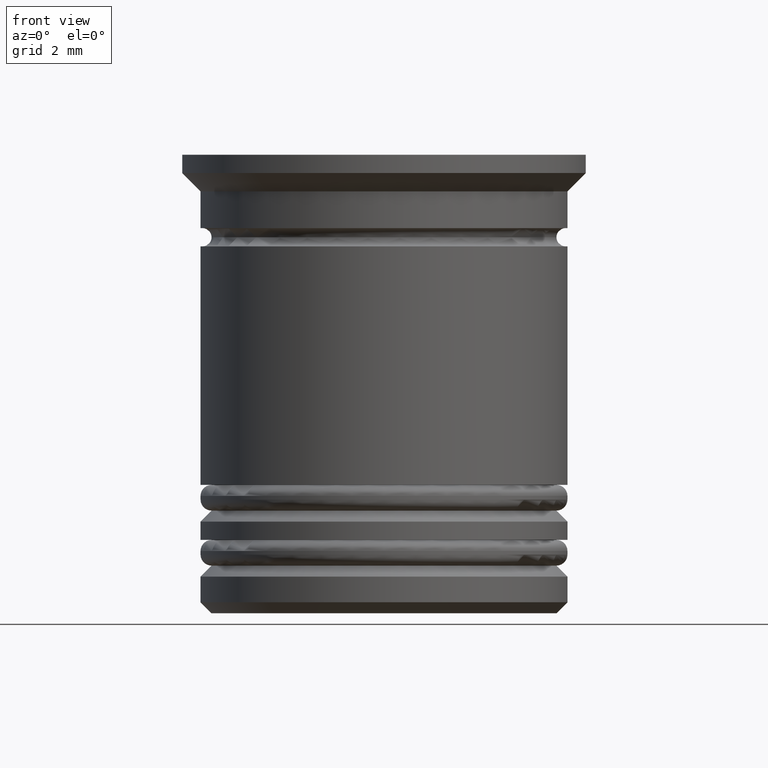
[diagram: clean part render]
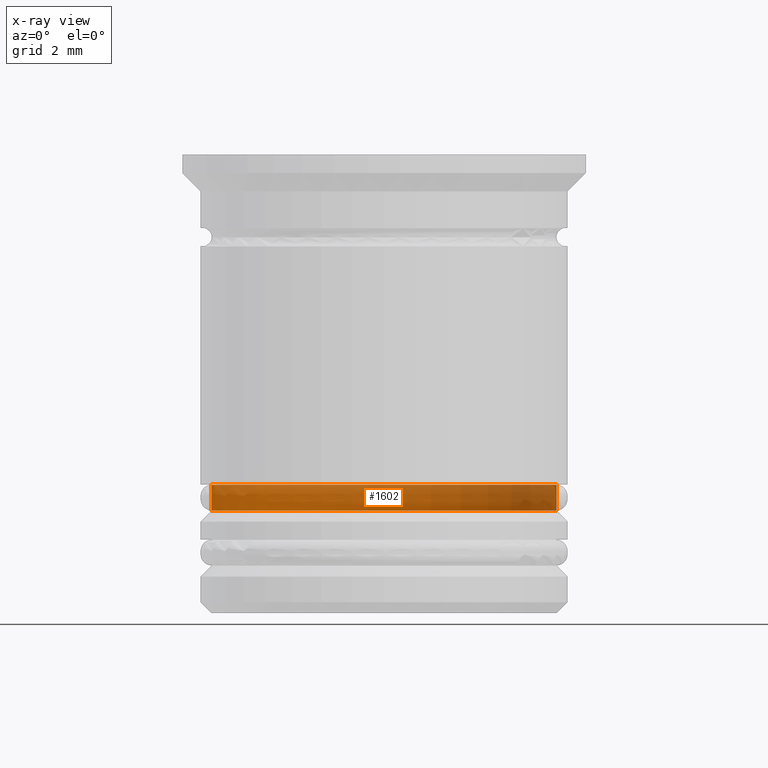
[diagram: x-ray — body ghosted, one internal face saturated and labeled with its STEP entity id]
A machine part, front view, then the same camera in x-ray: the body is ghosted and one INTERNAL B-rep face — a face not visible from any outside direction — is saturated and labeled: STEP entity #1602.
In plain terms, the highlighted cylindrical surface (partial cylindrical patch) has radius 4.7 mm, axis along (-0, -0, 1).
Its self-contained STEP definition (entity closure, byte-faithful):
#63 = LINE ( 'NONE', #691, #247 ) ;
#85 = VERTEX_POINT ( 'NONE', #692 ) ;
#148 = AXIS2_PLACEMENT_3D ( 'NONE', #1304, #401, #1010 ) ;
#204 = DIRECTION ( 'NONE',  ( -0.000000000000000000, -0.000000000000000000, 1.000000000000000000 ) ) ;
#220 = CARTESIAN_POINT ( 'NONE',  ( 0.000000000000000000, 0.000000000000000000, -9.700000000000008171 ) ) ;
#247 = VECTOR ( 'NONE', #656, 1000.000000000000000 ) ;
#290 = CARTESIAN_POINT ( 'NONE',  ( 0.000000000000000000, 0.000000000000000000, 0.000000000000000000 ) ) ;
#401 = DIRECTION ( 'NONE',  ( -0.000000000000000000, -0.000000000000000000, 1.000000000000000000 ) ) ;
#433 = DIRECTION ( 'NONE',  ( 1.000000000000000000, 0.000000000000000000, 0.000000000000000000 ) ) ;
#474 = ORIENTED_EDGE ( 'NONE', *, *, #964, .T. ) ;
#483 = AXIS2_PLACEMENT_3D ( 'NONE', #290, #907, #433 ) ;
#540 = VECTOR ( 'NONE', #1619, 1000.000000000000000 ) ;
#570 = ORIENTED_EDGE ( 'NONE', *, *, #683, .F. ) ;
#629 = CIRCLE ( 'NONE', #148, 4.700000000000001066 ) ;
#656 = DIRECTION ( 'NONE',  ( -0.000000000000000000, -0.000000000000000000, 1.000000000000000000 ) ) ;
#683 = EDGE_CURVE ( 'NONE', #1394, #1577, #629, .T. ) ;
#691 = CARTESIAN_POINT ( 'NONE',  ( 4.700000000000001066, 0.000000000000000000, 0.000000000000000000 ) ) ;
#692 = CARTESIAN_POINT ( 'NONE',  ( 4.700000000000001066, 0.000000000000000000, -9.700000000000008171 ) ) ;
#717 = CARTESIAN_POINT ( 'NONE',  ( -4.700000000000001066, 5.755839955992560641E-16, -9.700000000000008171 ) ) ;
#747 = CARTESIAN_POINT ( 'NONE',  ( 4.700000000000001066, 0.000000000000000000, -9.000000000000001776 ) ) ;
#907 = DIRECTION ( 'NONE',  ( -0.000000000000000000, -0.000000000000000000, 1.000000000000000000 ) ) ;
#943 = EDGE_CURVE ( 'NONE', #85, #1394, #63, .T. ) ;
#955 = CIRCLE ( 'NONE', #1288, 4.700000000000001066 ) ;
#964 = EDGE_CURVE ( 'NONE', #1681, #1577, #970, .T. ) ;
#970 = LINE ( 'NONE', #1126, #540 ) ;
#1010 = DIRECTION ( 'NONE',  ( 1.000000000000000000, 0.000000000000000000, 0.000000000000000000 ) ) ;
#1126 = CARTESIAN_POINT ( 'NONE',  ( -4.700000000000001066, 5.755839955992560641E-16, 0.000000000000000000 ) ) ;
#1231 = EDGE_CURVE ( 'NONE', #85, #1681, #955, .T. ) ;
#1244 = ORIENTED_EDGE ( 'NONE', *, *, #1231, .T. ) ;
#1288 = AXIS2_PLACEMENT_3D ( 'NONE', #220, #204, #1292 ) ;
#1292 = DIRECTION ( 'NONE',  ( -1.000000000000000000, 0.000000000000000000, 0.000000000000000000 ) ) ;
#1304 = CARTESIAN_POINT ( 'NONE',  ( 0.000000000000000000, 0.000000000000000000, -9.000000000000001776 ) ) ;
#1375 = CYLINDRICAL_SURFACE ( 'NONE', #483, 4.700000000000001066 ) ;
#1394 = VERTEX_POINT ( 'NONE', #747 ) ;
#1420 = EDGE_LOOP ( 'NONE', ( #1244, #474, #570, #1606 ) ) ;
#1536 = FACE_OUTER_BOUND ( 'NONE', #1420, .T. ) ;
#1577 = VERTEX_POINT ( 'NONE', #1723 ) ;
#1602 = ADVANCED_FACE ( 'NONE', ( #1536 ), #1375, .T. ) ;
#1606 = ORIENTED_EDGE ( 'NONE', *, *, #943, .F. ) ;
#1619 = DIRECTION ( 'NONE',  ( -0.000000000000000000, -0.000000000000000000, 1.000000000000000000 ) ) ;
#1681 = VERTEX_POINT ( 'NONE', #717 ) ;
#1723 = CARTESIAN_POINT ( 'NONE',  ( -4.700000000000001066, 5.755839955992560641E-16, -9.000000000000001776 ) ) ;